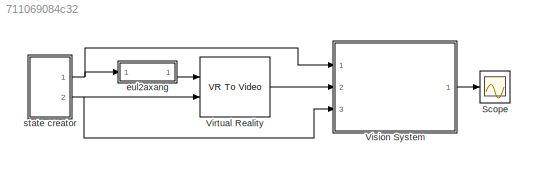
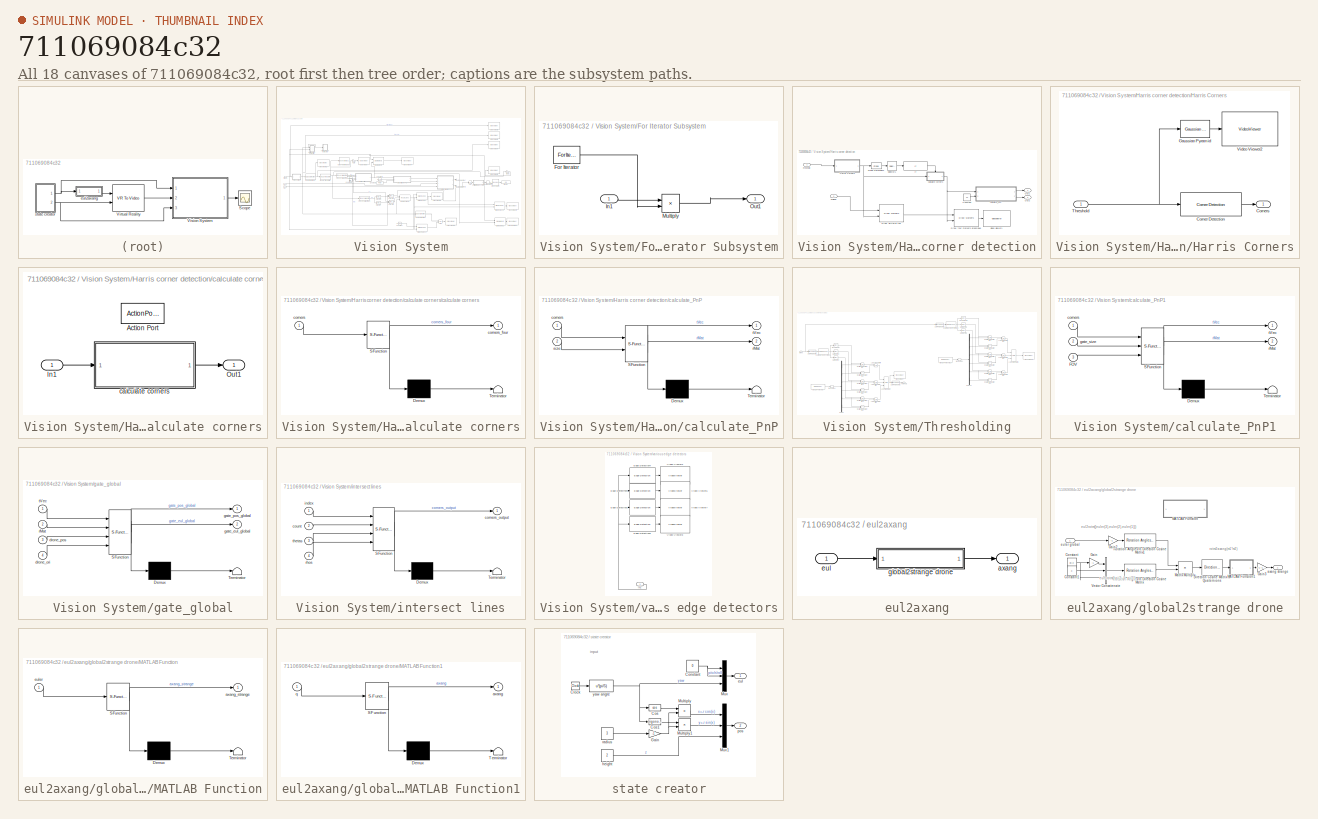
[diagram: thumbnail index - all 18 canvases of the model, root first then tree order]
MODEL slx_711069084c32
KIND model
CONFIG AbsTol = 10
CONFIG EnableMultiTasking = off
CONFIG FixedStep = .04
CONFIG MaxStep = 1.00
CONFIG MinStep = 0.005
CONFIG RelTol = 10
CONFIG SampleTimeConstraint = Unconstrained
CONFIG Solver = VariableStepAuto
CONFIG SolverName = VariableStepAuto
CONFIG StartTime = 0.0
CONFIG StopTime = 50
BLOCK [Scope] Scope
  Floating = off
  NumInputPorts = 1
  Ports = [1]
  ScopeSpecificationString = Simulink.scopes.TimeScopeBlockCfg('CurrentConfiguration', extmgr.ConfigurationSet(extmgr.Configuration('Core','General UI',true),extmgr.Configuration('Core','Source UI',true),extmgr.Configuration('Sources','WiredSimulink',true),extmgr.Configuration('Visuals','Time Domain',true,'SerializedDisplays',{struct('MinYLimReal','-2.05225','MaxYLimReal','2.4818','YLabelReal','','MinYLimMag','0.00000','MaxYL...<+1506ch>
BLOCK [Reference] Virtual Reality  REF=vrlib/VR To Video
  InstantiateOnLoad = on
  Ports = [2, 1]
  SourceBlock = vrlib/VR To Video
  SourceProductBaseCode = VR
  SourceProductName = Simulink 3D Animation
  SourceType = Virtual Reality Sink
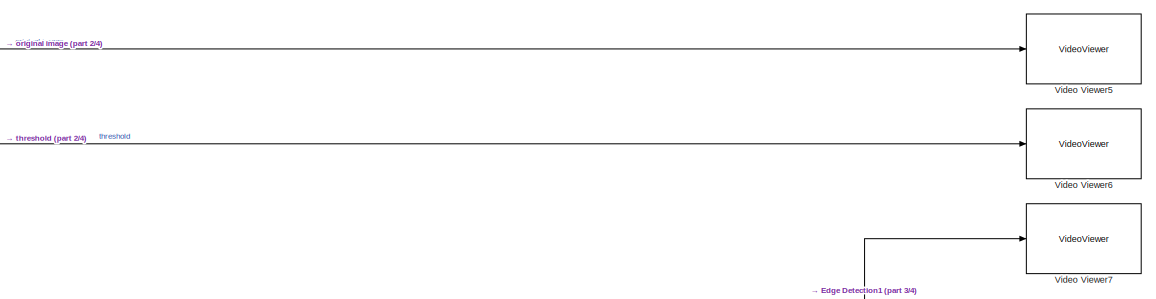
[diagram: Vision System - part 1/4, top right region]
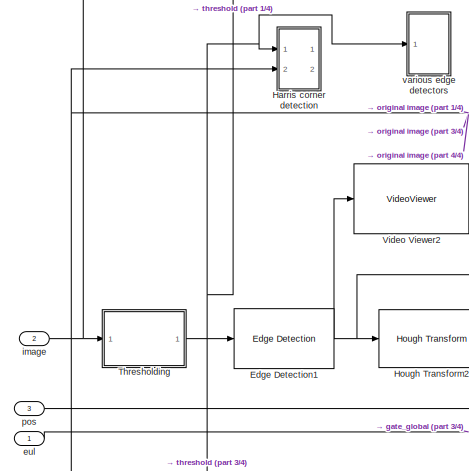
[diagram: Vision System - part 2/4, middle left region]
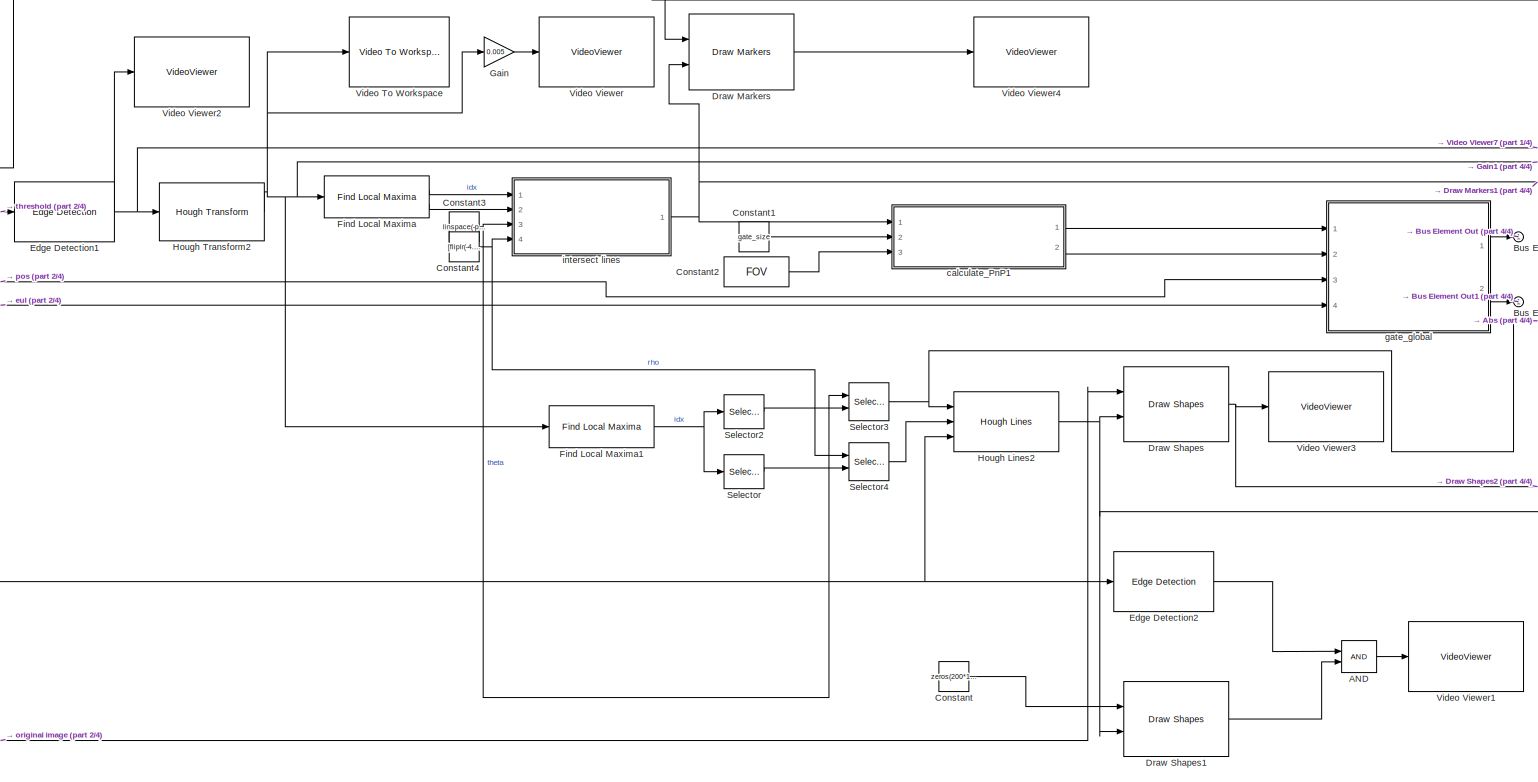
[diagram: Vision System - part 3/4, central region]
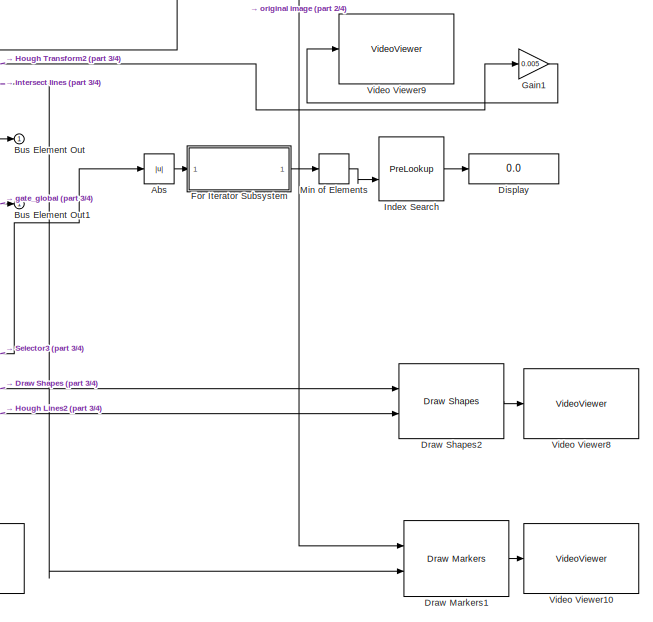
[diagram: Vision System - part 4/4, bottom right region]
BLOCK [SubSystem] Vision System
  Ports = [3, 1]
  RequestExecContextInheritance = off
BLOCK [Logic] Vision System/AND
  AllPortsSameDT = off
  IconShape = distinctive
  OutDataTypeStr = boolean
  Ports = [2, 1]
BLOCK [Abs] Vision System/Abs
  Commented = on
  SaturateOnIntegerOverflow = off
BLOCK [Outport] Vision System/Bus Element Out
  IconDisplay = Port number
BLOCK [Outport] Vision System/Bus Element Out1
  IconDisplay = Port number
BLOCK [Constant] Vision System/Constant
  Commented = on
  Value = zeros(200*1.5,320*1.5)
BLOCK [Constant] Vision System/Constant1
  Value = gate_size
BLOCK [Constant] Vision System/Constant2
  Value = FOV
BLOCK [Constant] Vision System/Constant3
  Value = linspace(-pi/2,pi/2-0.25*pi/180,720)
BLOCK [Constant] Vision System/Constant4
  Value = [fliplr(-4.5:-4.5:-sqrt(1280*1280+720*720)), 0:4.5:sqrt(1280*1280+720*720)]
BLOCK [Display] Vision System/Display
  Commented = on
  Decimation = 1
  Ports = [1]
BLOCK [Reference] Vision System/Draw Markers  REF=visiontextngfix/Draw Markers
  Commented = on
  Ports = [2, 1]
  SourceBlock = visiontextngfix/Draw Markers
  SourceProductBaseCode = VP
  SourceProductName = Computer Vision System Toolbox
  SourceType = Draw Markers
BLOCK [Reference] Vision System/Draw Markers1  REF=visiontextngfix/Draw Markers
  Commented = on
  Ports = [2, 1]
  SourceBlock = visiontextngfix/Draw Markers
  SourceProductBaseCode = VP
  SourceProductName = Computer Vision System Toolbox
  SourceType = Draw Markers
BLOCK [Reference] Vision System/Draw Shapes  REF=visiontextngfix/Draw Shapes
  Commented = on
  Ports = [2, 1]
  SourceBlock = visiontextngfix/Draw Shapes
  SourceProductBaseCode = VP
  SourceProductName = Computer Vision System Toolbox
  SourceType = Draw Shapes
BLOCK [Reference] Vision System/Draw Shapes1  REF=visiontextngfix/Draw Shapes
  Commented = on
  Ports = [2, 1]
  SourceBlock = visiontextngfix/Draw Shapes
  SourceProductBaseCode = VP
  SourceProductName = Computer Vision System Toolbox
  SourceType = Draw Shapes
BLOCK [Reference] Vision System/Draw Shapes2  REF=visiontextngfix/Draw Shapes
  Commented = on
  Ports = [2, 1]
  SourceBlock = visiontextngfix/Draw Shapes
  SourceProductBaseCode = VP
  SourceProductName = Computer Vision System Toolbox
  SourceType = Draw Shapes
BLOCK [Reference] Vision System/Edge Detection1  REF=visionanalysis/Edge Detection
  Ports = [1, 1]
  SourceBlock = visionanalysis/Edge Detection
  SourceProductBaseCode = VP
  SourceProductName = Computer Vision System Toolbox
  SourceType = Edge Detection
BLOCK [Reference] Vision System/Edge Detection2  REF=visionanalysis/Edge Detection
  Commented = on
  Ports = [1, 1]
  SourceBlock = visionanalysis/Edge Detection
  SourceProductBaseCode = VP
  SourceProductName = Computer Vision System Toolbox
  SourceType = Edge Detection
BLOCK [Reference] Vision System/Find Local Maxima  REF=visionstatistics/Find Local Maxima
  Ports = [1, 2]
  SourceBlock = visionstatistics/Find Local Maxima
  SourceProductBaseCode = VP
  SourceProductName = Computer Vision System Toolbox
  SourceType = Find Local Maxima
BLOCK [Reference] Vision System/Find Local Maxima1  REF=visionstatistics/Find Local Maxima
  Commented = on
  Ports = [1, 1]
  SourceBlock = visionstatistics/Find Local Maxima
  SourceProductBaseCode = VP
  SourceProductName = Computer Vision System Toolbox
  SourceType = Find Local Maxima
BLOCK [SubSystem] Vision System/For Iterator Subsystem
  Commented = on
  Ports = [1, 1]
  RequestExecContextInheritance = off
  TreatAsAtomicUnit = on
BLOCK [ForIterator] Vision System/For Iterator Subsystem/For Iterator
  Ports = [0, 1]
BLOCK [Inport] Vision System/For Iterator Subsystem/In1
  IconDisplay = Port number
BLOCK [Product] Vision System/For Iterator Subsystem/Multiply
  InputSameDT = off
  OutDataTypeStr = Inherit: Inherit via internal rule
  Ports = [2, 1]
  RndMeth = Floor
  SaturateOnIntegerOverflow = off
BLOCK [Outport] Vision System/For Iterator Subsystem/Out1
  IconDisplay = Port number
BLOCK [Gain] Vision System/Gain
  Commented = on
  Gain = 0.005
  OutDataTypeStr = Inherit: Inherit via internal rule
  ParamDataTypeStr = Inherit: Inherit via internal rule
  SaturateOnIntegerOverflow = off
BLOCK [Gain] Vision System/Gain1
  Commented = on
  Gain = 0.005
  OutDataTypeStr = Inherit: Inherit via internal rule
  ParamDataTypeStr = Inherit: Inherit via internal rule
  SaturateOnIntegerOverflow = off
BLOCK [SubSystem] Vision System/Harris corner detection
  Commented = on
  Ports = [2, 2]
  RequestExecContextInheritance = off
BLOCK [Constant] Vision System/Harris corner detection/Constant
  Commented = on
  Value = 1.4
BLOCK [Reference] Vision System/Harris corner detection/Draw all Harris red  REF=visiontextngfix/Draw Markers
  Commented = on
  Ports = [2, 1]
  SourceBlock = visiontextngfix/Draw Markers
  SourceProductBaseCode = VP
  SourceProductName = Computer Vision System Toolbox
  SourceType = Draw Markers
BLOCK [Reference] Vision System/Harris corner detection/Draw four markers green//blue  REF=visiontextngfix/Draw Markers
  Commented = on
  Ports = [2, 1]
  SourceBlock = visiontextngfix/Draw Markers
  SourceProductBaseCode = VP
  SourceProductName = Computer Vision System Toolbox
  SourceType = Draw Markers
BLOCK [SubSystem] Vision System/Harris corner detection/Harris Corners
  Commented = on
  Ports = [1, 1]
  RequestExecContextInheritance = off
BLOCK [Reference] Vision System/Harris corner detection/Harris Corners/Corner Detection  REF=visionanalysis/Corner Detection
  Ports = [1, 1]
  SourceBlock = visionanalysis/Corner Detection
  SourceProductBaseCode = VP
  SourceProductName = Computer Vision System Toolbox
  SourceType = Corner Detection
BLOCK [Outport] Vision System/Harris corner detection/Harris Corners/Corners
  IconDisplay = Port number
BLOCK [Reference] Vision System/Harris corner detection/Harris Corners/Gaussian Pyramid  REF=visiontransforms/Gaussian
Pyramid
  Commented = on
  Ports = [1, 1]
  SourceBlock = visiontransforms/Gaussian\nPyramid
  SourceProductBaseCode = VP
  SourceProductName = Computer Vision System Toolbox
  SourceType = Gaussian Pyramid
BLOCK [Inport] Vision System/Harris corner detection/Harris Corners/Threshold
  IconDisplay = Port number
BLOCK [VideoViewer] Vision System/Harris corner detection/Harris Corners/Video Viewer2
  Commented = on
  FigPos = [76 898 768 763]
  Ports = [1]
  ScopeSpecificationString = vipscopes.VideoViewerScopeCfg('CurrentConfiguration', extmgr.ConfigurationSet(extmgr.Configuration('Core','General UI',true,'ShowMainToolbar',false,'ShowStatusbar',false),extmgr.Configuration('Core','Source UI',true),extmgr.Configuration('Sources','WiredSimulink',true),extmgr.Configuration('Visuals','Video',true),extmgr.Configuration('Tools','Image Navigation Tools',true,'FitToView',true),extmgr.C...<+135ch>
  colormapValue = gray(256)
BLOCK [If] Vision System/Harris corner detection/If
  Commented = on
  IfExpression = u1 >= 4
  Ports = [1, 1]
  ShowElse = off
BLOCK [Outport] Vision System/Harris corner detection/Out1
  IconDisplay = Port number
BLOCK [Outport] Vision System/Harris corner detection/Out2
  IconDisplay = Port number
  Port = 2
BLOCK [Probe] Vision System/Harris corner detection/Probe Dimension1
  Commented = on
  Ports = [1, 1]
  ProbeComplexSignal = off
  ProbeSampleTime = off
  ProbeSignalDimensions = on
  ProbeWidth = off
BLOCK [Selector] Vision System/Harris corner detection/Selector1
  Commented = on
  IndexOptions = Index vector (dialog)
  Indices = 1
  OutputSizes = 1
  Ports = [1, 1]
BLOCK [VideoViewer] Vision System/Harris corner detection/Video Viewer1
  Commented = on
  FigPos = [823 898 758 735]
  Ports = [1]
  ScopeSpecificationString = vipscopes.VideoViewerScopeCfg('CurrentConfiguration', extmgr.ConfigurationSet(extmgr.Configuration('Core','General UI',true,'ShowMainToolbar',false,'ShowStatusbar',false),extmgr.Configuration('Core','Source UI',true),extmgr.Configuration('Sources','WiredSimulink',true,'LockSynchronous',true),extmgr.Configuration('Visuals','Video',true),extmgr.Configuration('Tools','Image Navigation Tools',true,'Fi...<+185ch>
  colormapValue = gray(256)
BLOCK [SubSystem] Vision System/Harris corner detection/calculate corners
  Commented = on
  Ports = [1, 1, 0, 0, 0, 0, 0, 1]
  RequestExecContextInheritance = off
  TreatAsAtomicUnit = on
BLOCK [ActionPort] Vision System/Harris corner detection/calculate corners/Action Port
  ActionType = then
  PropagateVarSize = During execution
BLOCK [Inport] Vision System/Harris corner detection/calculate corners/In1
  IconDisplay = Port number
BLOCK [Outport] Vision System/Harris corner detection/calculate corners/Out1
  IconDisplay = Port number
BLOCK [SubSystem] Vision System/Harris corner detection/calculate corners/calculate corners
  ErrorFcn = Stateflow.Translate.translate
  PermitHierarchicalResolution = ExplicitOnly
  Ports = [1, 1]
  RequestExecContextInheritance = off
  SFBlockType = MATLAB Function
  TreatAsAtomicUnit = on
BLOCK [Demux] Vision System/Harris corner detection/calculate corners/calculate corners/ Demux 
  Outputs = 1
  Ports = [1, 1]
BLOCK [S-Function] Vision System/Harris corner detection/calculate corners/calculate corners/ SFunction 
  EnableBusSupport = on
  FunctionName = sf_sfun
  PortCounts = [1 2]
  Ports = [1, 2]
  SFcnIsStateOwnerBlock = off
  SFunctionDeploymentMode = off
  Tag = Stateflow S-Function KF_vision 1
BLOCK [Terminator] Vision System/Harris corner detection/calculate corners/calculate corners/ Terminator 
BLOCK [Inport] Vision System/Harris corner detection/calculate corners/calculate corners/corners
  IconDisplay = Port number
BLOCK [Outport] Vision System/Harris corner detection/calculate corners/calculate corners/corners_four
  IconDisplay = Port number
BLOCK [SubSystem] Vision System/Harris corner detection/calculate_PnP
  Commented = on
  ErrorFcn = Stateflow.Translate.translate
  PermitHierarchicalResolution = ExplicitOnly
  Ports = [2, 2]
  RequestExecContextInheritance = off
  SFBlockType = MATLAB Function
  TreatAsAtomicUnit = on
BLOCK [Demux] Vision System/Harris corner detection/calculate_PnP/ Demux 
  Outputs = 1
  Ports = [1, 1]
BLOCK [S-Function] Vision System/Harris corner detection/calculate_PnP/ SFunction 
  EnableBusSupport = on
  FunctionName = sf_sfun
  PortCounts = [2 3]
  Ports = [2, 3]
  SFcnIsStateOwnerBlock = off
  SFunctionDeploymentMode = off
  Tag = Stateflow S-Function KF_vision 5
BLOCK [Terminator] Vision System/Harris corner detection/calculate_PnP/ Terminator 
BLOCK [Inport] Vision System/Harris corner detection/calculate_PnP/corners
  IconDisplay = Port number
BLOCK [Outport] Vision System/Harris corner detection/calculate_PnP/rMat
  IconDisplay = Port number
  Port = 2
BLOCK [Inport] Vision System/Harris corner detection/calculate_PnP/size
  IconDisplay = Port number
  Port = 2
BLOCK [Outport] Vision System/Harris corner detection/calculate_PnP/tVec
  IconDisplay = Port number
BLOCK [Inport] Vision System/Harris corner detection/hreshold
  IconDisplay = Port number
BLOCK [Inport] Vision System/Harris corner detection/original
  IconDisplay = Port number
  Port = 2
BLOCK [Reference] Vision System/Hough Lines2  REF=visiontransforms/Hough Lines
  Commented = on
  Ports = [3, 1]
  SourceBlock = visiontransforms/Hough Lines
  SourceProductBaseCode = VP
  SourceProductName = Computer Vision System Toolbox
  SourceType = Hough Lines
BLOCK [Reference] Vision System/Hough Transform2  REF=visiontransforms/Hough Transform
  Ports = [1, 1]
  SourceBlock = visiontransforms/Hough Transform
  SourceProductBaseCode = VP
  SourceProductName = Computer Vision System Toolbox
  SourceType = Hough Transform
BLOCK [PreLookup] Vision System/Index Search
  BreakpointsData = [10:10:110]
  BreakpointsDataSource = Input port
  Commented = on
  InputPortMap = u0,p1
  OutputSelection = Index only
  Ports = [2, 1]
BLOCK [MinMax] Vision System/Min of Elements
  Commented = on
  InputSameDT = off
  Ports = [1, 1]
  SaturateOnIntegerOverflow = off
BLOCK [Selector] Vision System/Selector
  Commented = on
  IndexMode = Zero-based
  IndexOptions = Select all,Index vector (dialog)
  Indices = 2,1
  InputPortWidth = 2
  NumberOfDimensions = 2
  OutputSizes = 1,1
  Ports = [1, 1]
BLOCK [Selector] Vision System/Selector2
  Commented = on
  IndexMode = Zero-based
  IndexOptions = Select all,Index vector (dialog)
  Indices = 1,0
  InputPortWidth = 2
  NumberOfDimensions = 2
  OutputSizes = 1,1
  Ports = [1, 1]
BLOCK [Selector] Vision System/Selector3
  Commented = on
  IndexOptions = Select all,Index vector (port)
  Indices = [1 3],1
  InputPortWidth = 3
  NumberOfDimensions = 2
  OutputSizes = 1,1
  Ports = [2, 1]
BLOCK [Selector] Vision System/Selector4
  Commented = on
  IndexOptions = Select all,Index vector (port)
  Indices = [1 3],1
  InputPortWidth = 3
  NumberOfDimensions = 2
  OutputSizes = 1,1
  Ports = [2, 1]
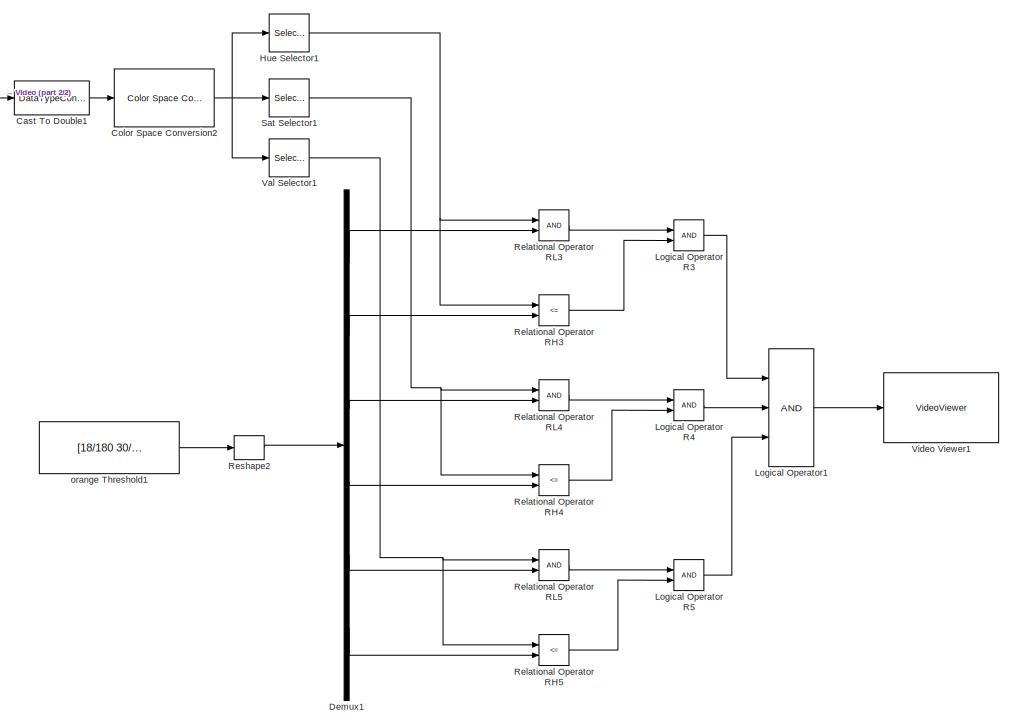
[diagram: Vision System/Thresholding - part 1/2, middle right region]
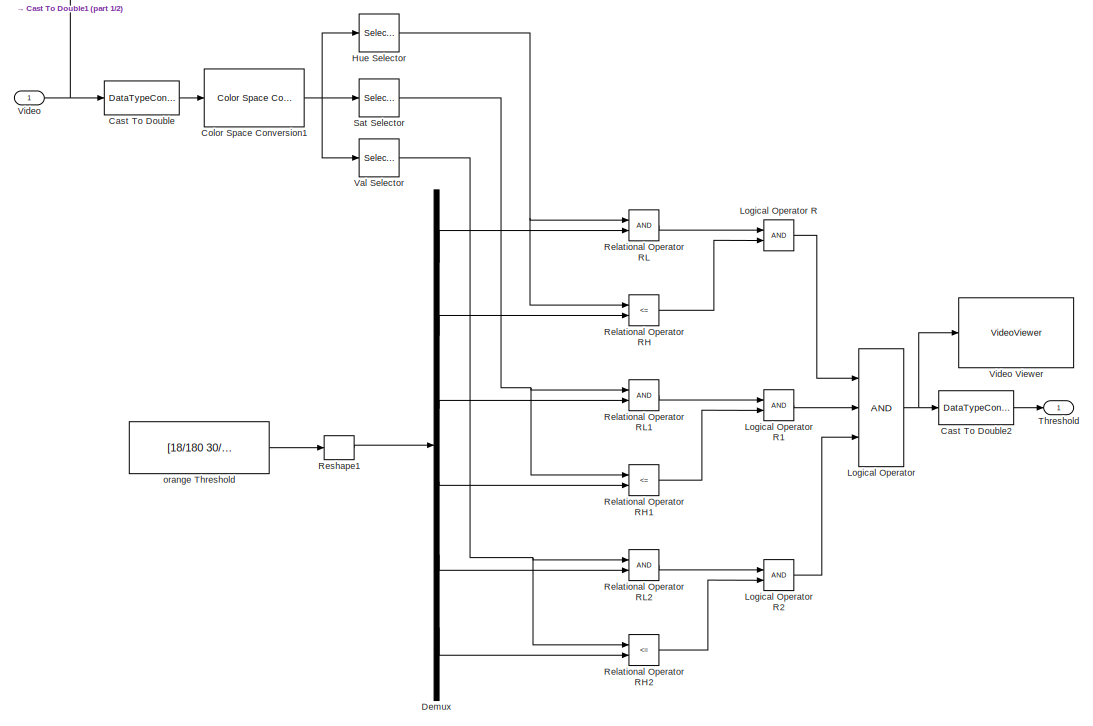
[diagram: Vision System/Thresholding - part 2/2, middle left region]
BLOCK [SubSystem] Vision System/Thresholding
  Ports = [1, 1]
  RequestExecContextInheritance = off
BLOCK [DataTypeConversion] Vision System/Thresholding/Cast To Double
  OutDataTypeStr = double
  RndMeth = Floor
  SaturateOnIntegerOverflow = off
BLOCK [DataTypeConversion] Vision System/Thresholding/Cast To Double1
  Commented = on
  OutDataTypeStr = double
  RndMeth = Floor
  SaturateOnIntegerOverflow = off
BLOCK [DataTypeConversion] Vision System/Thresholding/Cast To Double2
  OutDataTypeStr = double
  RndMeth = Floor
  SaturateOnIntegerOverflow = off
BLOCK [Reference] Vision System/Thresholding/Color Space Conversion1  REF=visionconversions/Color Space
 Conversion
  Ports = [1, 1]
  SourceBlock = visionconversions/Color Space\n Conversion
  SourceProductBaseCode = VP
  SourceProductName = Computer Vision System Toolbox
  SourceType = Color Space Conversion
BLOCK [Reference] Vision System/Thresholding/Color Space Conversion2  REF=visionconversions/Color Space
 Conversion
  Commented = on
  Ports = [1, 1]
  SourceBlock = visionconversions/Color Space\n Conversion
  SourceProductBaseCode = VP
  SourceProductName = Computer Vision System Toolbox
  SourceType = Color Space Conversion
BLOCK [Demux] Vision System/Thresholding/Demux
  DisplayOption = bar
  Outputs = 6
  Ports = [1, 6]
BLOCK [Demux] Vision System/Thresholding/Demux1
  Commented = on
  DisplayOption = bar
  Outputs = 6
  Ports = [1, 6]
BLOCK [Selector] Vision System/Thresholding/Hue Selector
  IndexMode = Zero-based
  IndexOptions = Select all,Select all,Index vector (dialog)
  Indices = [1 3],1,0
  InputPortWidth = 3
  NumberOfDimensions = 3
  OutputSizes = 1,1,1
  Ports = [1, 1]
BLOCK [Selector] Vision System/Thresholding/Hue Selector1
  Commented = on
  IndexOptions = Select all,Select all,Index vector (dialog)
  Indices = [1 3],1,1
  InputPortWidth = 3
  NumberOfDimensions = 3
  OutputSizes = 1,1,1
  Ports = [1, 1]
BLOCK [Logic] Vision System/Thresholding/Logical Operator
  AllPortsSameDT = off
  Inputs = 3
  OutDataTypeStr = boolean
  Ports = [3, 1]
BLOCK [Logic] Vision System/Thresholding/Logical Operator R
  AllPortsSameDT = off
  OutDataTypeStr = boolean
  Ports = [2, 1]
BLOCK [Logic] Vision System/Thresholding/Logical Operator R1
  AllPortsSameDT = off
  OutDataTypeStr = boolean
  Ports = [2, 1]
BLOCK [Logic] Vision System/Thresholding/Logical Operator R2
  AllPortsSameDT = off
  OutDataTypeStr = boolean
  Ports = [2, 1]
BLOCK [Logic] Vision System/Thresholding/Logical Operator R3
  AllPortsSameDT = off
  Commented = on
  OutDataTypeStr = boolean
  Ports = [2, 1]
BLOCK [Logic] Vision System/Thresholding/Logical Operator R4
  AllPortsSameDT = off
  Commented = on
  OutDataTypeStr = boolean
  Ports = [2, 1]
BLOCK [Logic] Vision System/Thresholding/Logical Operator R5
  AllPortsSameDT = off
  Commented = on
  OutDataTypeStr = boolean
  Ports = [2, 1]
BLOCK [Logic] Vision System/Thresholding/Logical Operator1
  AllPortsSameDT = off
  Commented = on
  Inputs = 3
  OutDataTypeStr = boolean
  Ports = [3, 1]
BLOCK [RelationalOperator] Vision System/Thresholding/Relational Operator RH
  InputSameDT = off
  Operator = <=
  OutDataTypeStr = boolean
  Ports = [2, 1]
BLOCK [RelationalOperator] Vision System/Thresholding/Relational Operator RH1
  InputSameDT = off
  Operator = <=
  OutDataTypeStr = boolean
  Ports = [2, 1]
BLOCK [RelationalOperator] Vision System/Thresholding/Relational Operator RH2
  InputSameDT = off
  Operator = <=
  OutDataTypeStr = boolean
  Ports = [2, 1]
BLOCK [RelationalOperator] Vision System/Thresholding/Relational Operator RH3
  Commented = on
  InputSameDT = off
  Operator = <=
  OutDataTypeStr = boolean
  Ports = [2, 1]
BLOCK [RelationalOperator] Vision System/Thresholding/Relational Operator RH4
  Commented = on
  InputSameDT = off
  Operator = <=
  OutDataTypeStr = boolean
  Ports = [2, 1]
BLOCK [RelationalOperator] Vision System/Thresholding/Relational Operator RH5
  Commented = on
  InputSameDT = off
  Operator = <=
  OutDataTypeStr = boolean
  Ports = [2, 1]
BLOCK [RelationalOperator] Vision System/Thresholding/Relational Operator RL
  InputSameDT = off
  OutDataTypeStr = boolean
  Ports = [2, 1]
BLOCK [RelationalOperator] Vision System/Thresholding/Relational Operator RL1
  InputSameDT = off
  OutDataTypeStr = boolean
  Ports = [2, 1]
BLOCK [RelationalOperator] Vision System/Thresholding/Relational Operator RL2
  InputSameDT = off
  OutDataTypeStr = boolean
  Ports = [2, 1]
BLOCK [RelationalOperator] Vision System/Thresholding/Relational Operator RL3
  Commented = on
  InputSameDT = off
  OutDataTypeStr = boolean
  Ports = [2, 1]
BLOCK [RelationalOperator] Vision System/Thresholding/Relational Operator RL4
  Commented = on
  InputSameDT = off
  OutDataTypeStr = boolean
  Ports = [2, 1]
BLOCK [RelationalOperator] Vision System/Thresholding/Relational Operator RL5
  Commented = on
  InputSameDT = off
  OutDataTypeStr = boolean
  Ports = [2, 1]
BLOCK [Reshape] Vision System/Thresholding/Reshape1
  Ports = [1, 1]
BLOCK [Reshape] Vision System/Thresholding/Reshape2
  Commented = on
  Ports = [1, 1]
BLOCK [Selector] Vision System/Thresholding/Sat Selector
  IndexMode = Zero-based
  IndexOptions = Select all,Select all,Index vector (dialog)
  Indices = [1 3],1,1
  InputPortWidth = 3
  NumberOfDimensions = 3
  OutputSizes = 1,1,1
  Ports = [1, 1]
BLOCK [Selector] Vision System/Thresholding/Sat Selector1
  Commented = on
  IndexOptions = Select all,Select all,Index vector (dialog)
  Indices = [1 3],1,2
  InputPortWidth = 3
  NumberOfDimensions = 3
  OutputSizes = 1,1,1
  Ports = [1, 1]
BLOCK [Outport] Vision System/Thresholding/Threshold
  IconDisplay = Port number
BLOCK [Selector] Vision System/Thresholding/Val Selector
  IndexMode = Zero-based
  IndexOptions = Select all,Select all,Index vector (dialog)
  Indices = [1 3],1,2
  InputPortWidth = 3
  NumberOfDimensions = 3
  OutputSizes = 1,1,1
  Ports = [1, 1]
BLOCK [Selector] Vision System/Thresholding/Val Selector1
  Commented = on
  IndexOptions = Select all,Select all,Index vector (dialog)
  Indices = [1 3],1,3
  InputPortWidth = 3
  NumberOfDimensions = 3
  OutputSizes = 1,1,1
  Ports = [1, 1]
BLOCK [Inport] Vision System/Thresholding/Video 
  IconDisplay = Port number
BLOCK [VideoViewer] Vision System/Thresholding/Video Viewer
  Commented = on
  FigPos = [833 898 768 793]
  Ports = [1]
  ScopeSpecificationString = vipscopes.VideoViewerScopeCfg('CurrentConfiguration', extmgr.ConfigurationSet(extmgr.Configuration('Core','General UI',true,'ShowMainToolbar',false,'ShowStatusbar',false),extmgr.Configuration('Core','Source UI',true),extmgr.Configuration('Sources','WiredSimulink',true),extmgr.Configuration('Visuals','Video',true),extmgr.Configuration('Tools','Image Navigation Tools',true,'FitToView',true),extmgr.C...<+136ch>
  colormapValue = gray(256)
BLOCK [VideoViewer] Vision System/Thresholding/Video Viewer1
  Commented = on
  FigPos = [823 898 778 793]
  Ports = [1]
  ScopeSpecificationString = vipscopes.VideoViewerScopeCfg('CurrentConfiguration', extmgr.ConfigurationSet(extmgr.Configuration('Core','General UI',true,'ShowMainToolbar',false,'ShowStatusbar',false),extmgr.Configuration('Core','Source UI',true),extmgr.Configuration('Sources','WiredSimulink',true),extmgr.Configuration('Visuals','Video',true),extmgr.Configuration('Tools','Image Navigation Tools',true,'FitToView',true),extmgr.C...<+136ch>
  colormapValue = gray(256)
BLOCK [Constant] Vision System/Thresholding/orange Threshold
  OutDataTypeStr = double
  Value = [18/180 30/180; 190/255 255/255; 75 255]'
BLOCK [Constant] Vision System/Thresholding/orange Threshold1
  Commented = on
  OutDataTypeStr = double
  Value = [18/180 30/180; 190/255 255/255; 75 255]'
BLOCK [Reference] Vision System/Video To Workspace  REF=visionsinks/Video To Workspace
  Commented = on
  Ports = [1]
  SourceBlock = visionsinks/Video To Workspace
  SourceProductBaseCode = VP
  SourceProductName = Computer Vision System Toolbox
  SourceType = Video To Workspace
BLOCK [VideoViewer] Vision System/Video Viewer
  Commented = on
  FigPos = [66 898 768 765]
  Ports = [1]
  ScopeSpecificationString = vipscopes.VideoViewerScopeCfg('CurrentConfiguration', extmgr.ConfigurationSet(extmgr.Configuration('Core','General UI',true),extmgr.Configuration('Core','Source UI',true),extmgr.Configuration('Sources','WiredSimulink',true),extmgr.Configuration('Visuals','Video',true),extmgr.Configuration('Tools','Image Navigation Tools',true,'FitToView',true),extmgr.Configuration('Tools','Image Tool',true),extmgr...<+115ch>
  colormapValue = gray(256)
BLOCK [VideoViewer] Vision System/Video Viewer1
  Commented = on
  FigPos = [983 1078 938 945]
  Ports = [1]
  ScopeSpecificationString = vipscopes.VideoViewerScopeCfg('CurrentConfiguration', extmgr.ConfigurationSet(extmgr.Configuration('Core','General UI',true,'ShowSaveConfigSet',true,'FigureProperties',struct('ColorMap',[0 0 0;0.00392156862745098 0.00392156862745098 0.00392156862745098;0.00784313725490196 0.00784313725490196 0.00784313725490196;0.0117647058823529 0.0117647058823529 0.0117647058823529;0.0156862745098039 0.015686274...<+15066ch>
  colormapValue = gray(256)
BLOCK [VideoViewer] Vision System/Video Viewer10
  Commented = on
  FigPos = [66 1078 1855 973]
  Ports = [1]
  ScopeSpecificationString = vipscopes.VideoViewerScopeCfg('CurrentConfiguration', extmgr.ConfigurationSet(extmgr.Configuration('Core','General UI',true,'ShowSaveConfigSet',true,'FigureProperties',struct('ColorMap',[0 0 0;0.00392156862745098 0.00392156862745098 0.00392156862745098;0.00784313725490196 0.00784313725490196 0.00784313725490196;0.0117647058823529 0.0117647058823529 0.0117647058823529;0.0156862745098039 0.015686274...<+15016ch>
  colormapValue = gray(256)
BLOCK [VideoViewer] Vision System/Video Viewer2
  Commented = on
  FigPos = [993 1078 928 945]
  Ports = [1]
  ScopeSpecificationString = vipscopes.VideoViewerScopeCfg('CurrentConfiguration', extmgr.ConfigurationSet(extmgr.Configuration('Core','General UI',true),extmgr.Configuration('Core','Source UI',true),extmgr.Configuration('Sources','WiredSimulink',true),extmgr.Configuration('Visuals','Video',true),extmgr.Configuration('Tools','Image Navigation Tools',true,'Magnification',1.6,'FitToView',true),extmgr.Configuration('Tools','Imag...<+136ch>
  colormapValue = gray(256)
BLOCK [VideoViewer] Vision System/Video Viewer3
  Commented = on
  FigPos = [993 1078 928 945]
  Ports = [1]
  ScopeSpecificationString = vipscopes.VideoViewerScopeCfg('CurrentConfiguration', extmgr.ConfigurationSet(extmgr.Configuration('Core','General UI',true,'ShowSaveConfigSet',true,'FigureProperties',struct('ColorMap',[0 0 0;0.00392156862745098 0.00392156862745098 0.00392156862745098;0.00784313725490196 0.00784313725490196 0.00784313725490196;0.0117647058823529 0.0117647058823529 0.0117647058823529;0.0156862745098039 0.015686274...<+15092ch>
  colormapValue = gray(256)
BLOCK [VideoViewer] Vision System/Video Viewer4
  Commented = on
  FigPos = [983 1078 938 945]
  Ports = [1]
  ScopeSpecificationString = vipscopes.VideoViewerScopeCfg('CurrentConfiguration', extmgr.ConfigurationSet(extmgr.Configuration('Core','General UI',true,'ShowSaveConfigSet',true,'FigureProperties',struct('ColorMap',[0 0 0;0.00392156862745098 0.00392156862745098 0.00392156862745098;0.00784313725490196 0.00784313725490196 0.00784313725490196;0.0117647058823529 0.0117647058823529 0.0117647058823529;0.0156862745098039 0.015686274...<+15092ch>
  colormapValue = gray(256)
BLOCK [VideoViewer] Vision System/Video Viewer5
  FigPos = [66 1078 1855 945]
  Ports = [1]
  ScopeSpecificationString = vipscopes.VideoViewerScopeCfg('CurrentConfiguration', extmgr.ConfigurationSet(extmgr.Configuration('Core','General UI',true),extmgr.Configuration('Core','Source UI',true),extmgr.Configuration('Sources','WiredSimulink',true),extmgr.Configuration('Visuals','Video',true),extmgr.Configuration('Tools','Image Navigation Tools',true,'FitToView',true),extmgr.Configuration('Tools','Image Tool',true),extmgr...<+90ch>
  colormapValue = gray(256)
BLOCK [VideoViewer] Vision System/Video Viewer6
  Commented = on
  FigPos = [66 1078 1855 973]
  Ports = [1]
  ScopeSpecificationString = vipscopes.VideoViewerScopeCfg('CurrentConfiguration', extmgr.ConfigurationSet(extmgr.Configuration('Core','General UI',true),extmgr.Configuration('Core','Source UI',true),extmgr.Configuration('Sources','WiredSimulink',true),extmgr.Configuration('Visuals','Video',true),extmgr.Configuration('Tools','Image Navigation Tools',true),extmgr.Configuration('Tools','Image Tool',true),extmgr.Configuration('T...<+73ch>  <repeated x3 — deduplicated; at blocks: Video Viewer6, Video Viewer7, Video Viewer8>
  colormapValue = gray(256)
BLOCK [VideoViewer] Vision System/Video Viewer7
  Commented = on
  FigPos = [66 1078 1855 973]
  Ports = [1]
  colormapValue = gray(256)
BLOCK [VideoViewer] Vision System/Video Viewer8
  Commented = on
  FigPos = [66 1078 1855 973]
  Ports = [1]
  colormapValue = gray(256)
BLOCK [VideoViewer] Vision System/Video Viewer9
  Commented = on
  FigPos = [66 1078 1855 973]
  Ports = [1]
  ScopeSpecificationString = vipscopes.VideoViewerScopeCfg('CurrentConfiguration', extmgr.ConfigurationSet(extmgr.Configuration('Core','General UI',true),extmgr.Configuration('Core','Source UI',true),extmgr.Configuration('Sources','WiredSimulink',true),extmgr.Configuration('Visuals','Video',true),extmgr.Configuration('Tools','Image Navigation Tools',true,'FitToView',true),extmgr.Configuration('Tools','Image Tool',true),extmgr...<+90ch>
  colormapValue = gray(256)
BLOCK [SubSystem] Vision System/calculate_PnP1
  ErrorFcn = Stateflow.Translate.translate
  PermitHierarchicalResolution = ExplicitOnly
  Ports = [3, 2]
  RequestExecContextInheritance = off
  SFBlockType = MATLAB Function
  TreatAsAtomicUnit = on
BLOCK [Demux] Vision System/calculate_PnP1/ Demux 
  Outputs = 1
  Ports = [1, 1]
BLOCK [S-Function] Vision System/calculate_PnP1/ SFunction 
  EnableBusSupport = on
  FunctionName = sf_sfun
  PortCounts = [3 3]
  Ports = [3, 3]
  SFcnIsStateOwnerBlock = off
  SFunctionDeploymentMode = off
  Tag = Stateflow S-Function KF_vision 13
BLOCK [Terminator] Vision System/calculate_PnP1/ Terminator 
BLOCK [Inport] Vision System/calculate_PnP1/FOV
  IconDisplay = Port number
  Port = 3
BLOCK [Inport] Vision System/calculate_PnP1/corners
  IconDisplay = Port number
BLOCK [Inport] Vision System/calculate_PnP1/gate_size
  IconDisplay = Port number
  Port = 2
BLOCK [Outport] Vision System/calculate_PnP1/rMat
  IconDisplay = Port number
  Port = 2
BLOCK [Outport] Vision System/calculate_PnP1/tVec
  IconDisplay = Port number
BLOCK [Inport] Vision System/eul
  IconDisplay = Port number
BLOCK [SubSystem] Vision System/gate_global
  ErrorFcn = Stateflow.Translate.translate
  PermitHierarchicalResolution = ExplicitOnly
  Ports = [4, 2]
  RequestExecContextInheritance = off
  SFBlockType = MATLAB Function
  TreatAsAtomicUnit = on
BLOCK [Demux] Vision System/gate_global/ Demux 
  Outputs = 1
  Ports = [1, 1]
BLOCK [S-Function] Vision System/gate_global/ SFunction 
  EnableBusSupport = on
  FunctionName = sf_sfun
  PortCounts = [4 3]
  Ports = [4, 3]
  SFcnIsStateOwnerBlock = off
  SFunctionDeploymentMode = off
  Tag = Stateflow S-Function KF_vision 18
BLOCK [Terminator] Vision System/gate_global/ Terminator 
BLOCK [Inport] Vision System/gate_global/drone_ori
  IconDisplay = Port number
  Port = 4
BLOCK [Inport] Vision System/gate_global/drone_pos
  IconDisplay = Port number
  Port = 3
BLOCK [Outport] Vision System/gate_global/gate_eul_global
  IconDisplay = Port number
  Port = 2
BLOCK [Outport] Vision System/gate_global/gate_pos_global
  IconDisplay = Port number
BLOCK [Inport] Vision System/gate_global/rMat
  IconDisplay = Port number
  Port = 2
BLOCK [Inport] Vision System/gate_global/tVec
  IconDisplay = Port number
BLOCK [Inport] Vision System/image
  IconDisplay = Port number
  Port = 2
BLOCK [SubSystem] Vision System/intersect lines
  ErrorFcn = Stateflow.Translate.translate
  PermitHierarchicalResolution = ExplicitOnly
  Ports = [4, 1]
  RequestExecContextInheritance = off
  SFBlockType = MATLAB Function
  TreatAsAtomicUnit = on
BLOCK [Demux] Vision System/intersect lines/ Demux 
  Outputs = 1
  Ports = [1, 1]
BLOCK [S-Function] Vision System/intersect lines/ SFunction 
  EnableBusSupport = on
  FunctionName = sf_sfun
  PortCounts = [4 2]
  Ports = [4, 2]
  SFcnIsStateOwnerBlock = off
  SFunctionDeploymentMode = off
  Tag = Stateflow S-Function KF_vision 12
BLOCK [Terminator] Vision System/intersect lines/ Terminator 
BLOCK [Outport] Vision System/intersect lines/corners_output
  IconDisplay = Port number
BLOCK [Inport] Vision System/intersect lines/count
  IconDisplay = Port number
  Port = 2
BLOCK [Inport] Vision System/intersect lines/index
  IconDisplay = Port number
BLOCK [Inport] Vision System/intersect lines/rhos
  IconDisplay = Port number
  Port = 4
BLOCK [Inport] Vision System/intersect lines/thetas
  IconDisplay = Port number
  Port = 3
BLOCK [Inport] Vision System/pos
  IconDisplay = Port number
  Port = 3
BLOCK [SubSystem] Vision System/various edge detectors
  Commented = on
  Ports = [1]
  RequestExecContextInheritance = off
BLOCK [Reference] Vision System/various edge detectors/Edge Detection2  REF=visionanalysis/Edge Detection
  Commented = on
  Ports = [1, 1]
  SourceBlock = visionanalysis/Edge Detection
  SourceProductBaseCode = VP
  SourceProductName = Computer Vision System Toolbox
  SourceType = Edge Detection
BLOCK [Reference] Vision System/various edge detectors/Edge Detection3  REF=visionanalysis/Edge Detection
  Commented = on
  Ports = [1, 1]
  SourceBlock = visionanalysis/Edge Detection
  SourceProductBaseCode = VP
  SourceProductName = Computer Vision System Toolbox
  SourceType = Edge Detection
BLOCK [Reference] Vision System/various edge detectors/Edge Detection4  REF=visionanalysis/Edge Detection
  Commented = on
  Ports = [1, 1]
  SourceBlock = visionanalysis/Edge Detection
  SourceProductBaseCode = VP
  SourceProductName = Computer Vision System Toolbox
  SourceType = Edge Detection
BLOCK [Reference] Vision System/various edge detectors/Edge Detection5  REF=visionanalysis/Edge Detection
  Commented = on
  Ports = [1, 1]
  SourceBlock = visionanalysis/Edge Detection
  SourceProductBaseCode = VP
  SourceProductName = Computer Vision System Toolbox
  SourceType = Edge Detection
BLOCK [Inport] Vision System/various edge detectors/In1
  IconDisplay = Port number
BLOCK [VideoViewer] Vision System/various edge detectors/Video Viewer5
  Commented = on
  FigPos = [66 590 883 485]
  Ports = [1]
  ScopeSpecificationString = vipscopes.VideoViewerScopeCfg('CurrentConfiguration', extmgr.ConfigurationSet(extmgr.Configuration('Core','General UI',true,'ShowMainToolbar',false,'ShowStatusbar',false),extmgr.Configuration('Core','Source UI',true),extmgr.Configuration('Sources','WiredSimulink',true),extmgr.Configuration('Visuals','Video',true),extmgr.Configuration('Tools','Image Navigation Tools',true,'Magnification',1.6,'FitTo...<+157ch>
  colormapValue = gray(256)
BLOCK [VideoViewer] Vision System/various edge detectors/Video Viewer6
  Commented = on
  FigPos = [944 599 964 491]
  Ports = [1]
  ScopeSpecificationString = vipscopes.VideoViewerScopeCfg('CurrentConfiguration', extmgr.ConfigurationSet(extmgr.Configuration('Core','General UI',true,'ShowMainToolbar',false,'ShowStatusbar',false),extmgr.Configuration('Core','Source UI',true),extmgr.Configuration('Sources','WiredSimulink',true),extmgr.Configuration('Visuals','Video',true),extmgr.Configuration('Tools','Image Navigation Tools',true,'Magnification',1.6,'FitTo...<+158ch>
  colormapValue = gray(256)
BLOCK [VideoViewer] Vision System/various edge detectors/Video Viewer7
  Commented = on
  FigPos = [76 1078 884 495]
  Ports = [1]
  ScopeSpecificationString = vipscopes.VideoViewerScopeCfg('CurrentConfiguration', extmgr.ConfigurationSet(extmgr.Configuration('Core','General UI',true,'ShowMainToolbar',false,'ShowStatusbar',false),extmgr.Configuration('Core','Source UI',true),extmgr.Configuration('Sources','WiredSimulink',true),extmgr.Configuration('Visuals','Video',true),extmgr.Configuration('Tools','Image Navigation Tools',true,'Magnification',1.6,'FitTo...<+155ch>
  colormapValue = gray(256)
BLOCK [VideoViewer] Vision System/various edge detectors/Video Viewer8
  Commented = on
  FigPos = [956 1078 951 493]
  Ports = [1]
  ScopeSpecificationString = vipscopes.VideoViewerScopeCfg('CurrentConfiguration', extmgr.ConfigurationSet(extmgr.Configuration('Core','General UI',true,'ShowMainToolbar',false,'ShowStatusbar',false),extmgr.Configuration('Core','Source UI',true),extmgr.Configuration('Sources','WiredSimulink',true),extmgr.Configuration('Visuals','Video',true),extmgr.Configuration('Tools','Image Navigation Tools',true,'Magnification',1.6,'FitTo...<+156ch>
  colormapValue = gray(256)
BLOCK [SubSystem] eul2axang
  Ports = [1, 1]
  RequestExecContextInheritance = off
BLOCK [Outport] eul2axang/axang
  IconDisplay = Port number
BLOCK [Inport] eul2axang/eul
  IconDisplay = Port number
BLOCK [SubSystem] eul2axang/global2strange drone
  Ports = [1, 1]
  RequestExecContextInheritance = off
BLOCK [Constant] eul2axang/global2strange drone/Constant
  Value = pi/2
BLOCK [Constant] eul2axang/global2strange drone/Constant1
  Value = 0
BLOCK [Reference] eul2axang/global2strange drone/Direction Cosine Matrix to Quaternions  REF=sharedtransform/Direction Cosine Matrix 
to Quaternions
  Ports = [1, 1]
  SourceBlock = sharedtransform/Direction Cosine Matrix \nto Quaternions
  SourceProductBaseCode = AE
  SourceProductName = Aerospace Blockset
  SourceType = DCM2Quaternion
BLOCK [Gain] eul2axang/global2strange drone/Gain
  Gain = -1
  OutDataTypeStr = Inherit: Inherit via internal rule
  ParamDataTypeStr = Inherit: Inherit via internal rule
  SaturateOnIntegerOverflow = off
BLOCK [Gain] eul2axang/global2strange drone/Gain2
  Gain = -1
  OutDataTypeStr = Inherit: Inherit via internal rule
  ParamDataTypeStr = Inherit: Inherit via internal rule
  SaturateOnIntegerOverflow = off
BLOCK [Gain] eul2axang/global2strange drone/Gain3
  Gain = [-1,-1,-1,1]
  OutDataTypeStr = Inherit: Inherit via internal rule
  ParamDataTypeStr = Inherit: Inherit via internal rule
  SaturateOnIntegerOverflow = off
BLOCK [SubSystem] eul2axang/global2strange drone/MATLAB Function
  Commented = on
  ErrorFcn = Stateflow.Translate.translate
  PermitHierarchicalResolution = ExplicitOnly
  Ports = [1, 1]
  RequestExecContextInheritance = off
  SFBlockType = MATLAB Function
  TreatAsAtomicUnit = on
BLOCK [Demux] eul2axang/global2strange drone/MATLAB Function/ Demux 
  Outputs = 1
  Ports = [1, 1]
BLOCK [S-Function] eul2axang/global2strange drone/MATLAB Function/ SFunction 
  EnableBusSupport = on
  FunctionName = sf_sfun
  PortCounts = [1 2]
  Ports = [1, 2]
  SFcnIsStateOwnerBlock = off
  SFunctionDeploymentMode = off
  Tag = Stateflow S-Function KF_vision 4
BLOCK [Terminator] eul2axang/global2strange drone/MATLAB Function/ Terminator 
BLOCK [Outport] eul2axang/global2strange drone/MATLAB Function/axang_strange
  IconDisplay = Port number
BLOCK [Inport] eul2axang/global2strange drone/MATLAB Function/euler
  IconDisplay = Port number
BLOCK [SubSystem] eul2axang/global2strange drone/MATLAB Function1
  ErrorFcn = Stateflow.Translate.translate
  PermitHierarchicalResolution = ExplicitOnly
  Ports = [1, 1]
  RequestExecContextInheritance = off
  SFBlockType = MATLAB Function
  TreatAsAtomicUnit = on
BLOCK [Demux] eul2axang/global2strange drone/MATLAB Function1/ Demux 
  Outputs = 1
  Ports = [1, 1]
BLOCK [S-Function] eul2axang/global2strange drone/MATLAB Function1/ SFunction 
  EnableBusSupport = on
  FunctionName = sf_sfun
  PortCounts = [1 2]
  Ports = [1, 2]
  SFcnIsStateOwnerBlock = off
  SFunctionDeploymentMode = off
  Tag = Stateflow S-Function KF_vision 7
BLOCK [Terminator] eul2axang/global2strange drone/MATLAB Function1/ Terminator 
BLOCK [Outport] eul2axang/global2strange drone/MATLAB Function1/axang
  IconDisplay = Port number
BLOCK [Inport] eul2axang/global2strange drone/MATLAB Function1/q
  IconDisplay = Port number
BLOCK [Product] eul2axang/global2strange drone/Matrix Multiply
  InputSameDT = off
  Multiplication = Matrix(*)
  OutDataTypeStr = Inherit: Inherit via internal rule
  Ports = [2, 1]
  RndMeth = Floor
  SaturateOnIntegerOverflow = off
BLOCK [Reference] eul2axang/global2strange drone/Rotation Angles to Direction Cosine Matrix  REF=sharedtransform/Rotation Angles to
Direction Cosine Matrix
  AttributesFormatString = Rotation Order: %<rotationOrder>
  Ports = [1, 1]
  SourceBlock = sharedtransform/Rotation Angles to\nDirection Cosine Matrix
  SourceProductBaseCode = AE
  SourceProductName = Aerospace Blockset
  SourceType = Ang2DCM
BLOCK [Reference] eul2axang/global2strange drone/Rotation Angles to Direction Cosine Matrix1  REF=sharedtransform/Rotation Angles to
Direction Cosine Matrix
  AttributesFormatString = Rotation Order: %<rotationOrder>
  Ports = [1, 1]
  SourceBlock = sharedtransform/Rotation Angles to\nDirection Cosine Matrix
  SourceProductBaseCode = AE
  SourceProductName = Aerospace Blockset
  SourceType = Ang2DCM
BLOCK [Concatenate] eul2axang/global2strange drone/Vector Concatenate
  NumInputs = 3
  Ports = [3, 1]
BLOCK [Outport] eul2axang/global2strange drone/axang strange
  IconDisplay = Port number
BLOCK [Inport] eul2axang/global2strange drone/euler global
  IconDisplay = Port number
BLOCK [SubSystem] state creator
  Ports = [0, 2]
  RequestExecContextInheritance = off
BLOCK [Clock] state creator/Clock
BLOCK [Constant] state creator/Constant
  Value = 0
BLOCK [Trigonometry] state creator/Cos
  Operator = cos
  Ports = [1, 1]
BLOCK [Trigonometry] state creator/Cos1
  Ports = [1, 1]
BLOCK [Gain] state creator/Gain
  Gain = -1
  OutDataTypeStr = Inherit: Inherit via internal rule
  ParamDataTypeStr = Inherit: Inherit via internal rule
  SaturateOnIntegerOverflow = off
BLOCK [Product] state creator/Multiply
  InputSameDT = off
  OutDataTypeStr = Inherit: Inherit via internal rule
  Ports = [2, 1]
  RndMeth = Floor
  SaturateOnIntegerOverflow = off
BLOCK [Product] state creator/Multiply1
  InputSameDT = off
  OutDataTypeStr = Inherit: Inherit via internal rule
  Ports = [2, 1]
  RndMeth = Floor
  SaturateOnIntegerOverflow = off
BLOCK [Mux] state creator/Mux
  DisplayOption = bar
  Inputs = 3
  Ports = [3, 1]
BLOCK [Mux] state creator/Mux1
  DisplayOption = bar
  Inputs = 3
  Ports = [3, 1]
BLOCK [Outport] state creator/eul
  IconDisplay = Port number
BLOCK [Constant] state creator/height
  Value = 2
BLOCK [Outport] state creator/pos
  IconDisplay = Port number
  Port = 2
BLOCK [Constant] state creator/radius
  Value = 3
BLOCK [Fcn] state creator/yaw angle
  Expr = u*(pi/5)
ANNOTATION eul2axang/global2strange drone: eul2rotm([-pi/2, 0, pi/2])
ANNOTATION eul2axang/global2strange drone: eul2rotm([euler(3),euler(2),euler(1)])
ANNOTATION eul2axang/global2strange drone: rotm2axang(m1*m2)
ANNOTATION state creator: input
LINE Virtual Reality:1 -> Vision System:2
LINE Vision System/AND:1 -> Vision System/Video Viewer1:1
LINE Vision System/Abs:1 -> Vision System/For Iterator Subsystem:1
LINE Vision System/Constant1:1 -> Vision System/calculate_PnP1:2
LINE Vision System/Constant2:1 -> Vision System/calculate_PnP1:3
NET Vision System/Constant3:1 -> Vision System/Selector3:1, Vision System/intersect lines:3
NET Vision System/Constant4:1 -> Vision System/Selector4:1, Vision System/intersect lines:4
LINE Vision System/Constant:1 -> Vision System/Draw Shapes1:1
LINE Vision System/Draw Markers1:1 -> Vision System/Video Viewer10:1
LINE Vision System/Draw Markers:1 -> Vision System/Video Viewer4:1
LINE Vision System/Draw Shapes1:1 -> Vision System/AND:2
LINE Vision System/Draw Shapes2:1 -> Vision System/Video Viewer8:1
NET Vision System/Draw Shapes:1 -> Vision System/Draw Shapes2:1, Vision System/Video Viewer3:1
NET Vision System/Edge Detection1:1 -> Vision System/Hough Transform2:1, Vision System/Video Viewer2:1, Vision System/Video Viewer7:1
LINE Vision System/Edge Detection2:1 -> Vision System/AND:1
NET Vision System/Find Local Maxima1:1 -> Vision System/Selector2:1, Vision System/Selector:1
LINE Vision System/Find Local Maxima:1 -> Vision System/intersect lines:1
LINE Vision System/Find Local Maxima:2 -> Vision System/intersect lines:2
LINE Vision System/For Iterator Subsystem/For Iterator:1 -> Vision System/For Iterator Subsystem/Multiply:2
LINE Vision System/For Iterator Subsystem/In1:1 -> Vision System/For Iterator Subsystem/Multiply:1
LINE Vision System/For Iterator Subsystem/Multiply:1 -> Vision System/For Iterator Subsystem/Out1:1
LINE Vision System/For Iterator Subsystem:1 -> Vision System/Min of Elements:1
LINE Vision System/Gain1:1 -> Vision System/Video Viewer9:1
LINE Vision System/Gain:1 -> Vision System/Video Viewer:1
LINE Vision System/Harris corner detection/Constant:1 -> Vision System/Harris corner detection/calculate_PnP:2
LINE Vision System/Harris corner detection/Draw all Harris red:1 -> Vision System/Harris corner detection/Draw four markers green//blue:1
LINE Vision System/Harris corner detection/Draw four markers green//blue:1 -> Vision System/Harris corner detection/Video Viewer1:1
LINE Vision System/Harris corner detection/Harris Corners/Corner Detection:1 -> Vision System/Harris corner detection/Harris Corners/Corners:1
LINE Vision System/Harris corner detection/Harris Corners/Gaussian Pyramid:1 -> Vision System/Harris corner detection/Harris Corners/Video Viewer2:1
NET Vision System/Harris corner detection/Harris Corners/Threshold:1 -> Vision System/Harris corner detection/Harris Corners/Corner Detection:1, Vision System/Harris corner detection/Harris Corners/Gaussian Pyramid:1
NET Vision System/Harris corner detection/Harris Corners:1 -> Vision System/Harris corner detection/Draw all Harris red:2, Vision System/Harris corner detection/Probe Dimension1:1, Vision System/Harris corner detection/calculate corners:1
LINE Vision System/Harris corner detection/If:1 -> Vision System/Harris corner detection/calculate corners:ifaction
LINE Vision System/Harris corner detection/Probe Dimension1:1 -> Vision System/Harris corner detection/Selector1:1
LINE Vision System/Harris corner detection/Selector1:1 -> Vision System/Harris corner detection/If:1
LINE Vision System/Harris corner detection/calculate corners/In1:1 -> Vision System/Harris corner detection/calculate corners/calculate corners:1
LINE Vision System/Harris corner detection/calculate corners/calculate corners:1 -> Vision System/Harris corner detection/calculate corners/Out1:1
NET Vision System/Harris corner detection/calculate corners:1 -> Vision System/Harris corner detection/Draw four markers green//blue:2, Vision System/Harris corner detection/calculate_PnP:1
LINE Vision System/Harris corner detection/calculate_PnP:1 -> Vision System/Harris corner detection/Out1:1
LINE Vision System/Harris corner detection/calculate_PnP:2 -> Vision System/Harris corner detection/Out2:1
LINE Vision System/Harris corner detection/hreshold:1 -> Vision System/Harris corner detection/Harris Corners:1
LINE Vision System/Harris corner detection/original:1 -> Vision System/Harris corner detection/Draw all Harris red:1
NET Vision System/Hough Lines2:1 -> Vision System/Draw Shapes1:2, Vision System/Draw Shapes2:2, Vision System/Draw Shapes:2
NET Vision System/Hough Transform2:1 -> Vision System/Find Local Maxima1:1, Vision System/Find Local Maxima:1, Vision System/Gain1:1, Vision System/Gain:1, Vision System/Video To Workspace:1
LINE Vision System/Index Search:1 -> Vision System/Display:1
LINE Vision System/Min of Elements:1 -> Vision System/Index Search:2
LINE Vision System/Selector2:1 -> Vision System/Selector3:2
NET Vision System/Selector3:1 -> Vision System/Abs:1, Vision System/Hough Lines2:1
LINE Vision System/Selector4:1 -> Vision System/Hough Lines2:2
LINE Vision System/Selector:1 -> Vision System/Selector4:2
LINE Vision System/Thresholding/Cast To Double1:1 -> Vision System/Thresholding/Color Space Conversion2:1
LINE Vision System/Thresholding/Cast To Double2:1 -> Vision System/Thresholding/Threshold:1
LINE Vision System/Thresholding/Cast To Double:1 -> Vision System/Thresholding/Color Space Conversion1:1
NET Vision System/Thresholding/Color Space Conversion1:1 -> Vision System/Thresholding/Hue Selector:1, Vision System/Thresholding/Sat Selector:1, Vision System/Thresholding/Val Selector:1
NET Vision System/Thresholding/Color Space Conversion2:1 -> Vision System/Thresholding/Hue Selector1:1, Vision System/Thresholding/Sat Selector1:1, Vision System/Thresholding/Val Selector1:1
LINE Vision System/Thresholding/Demux1:1 -> Vision System/Thresholding/Relational Operator RL3:2
LINE Vision System/Thresholding/Demux1:2 -> Vision System/Thresholding/Relational Operator RH3:2
LINE Vision System/Thresholding/Demux1:3 -> Vision System/Thresholding/Relational Operator RL4:2
LINE Vision System/Thresholding/Demux1:4 -> Vision System/Thresholding/Relational Operator RH4:2
LINE Vision System/Thresholding/Demux1:5 -> Vision System/Thresholding/Relational Operator RL5:2
LINE Vision System/Thresholding/Demux1:6 -> Vision System/Thresholding/Relational Operator RH5:2
LINE Vision System/Thresholding/Demux:1 -> Vision System/Thresholding/Relational Operator RL:2
LINE Vision System/Thresholding/Demux:2 -> Vision System/Thresholding/Relational Operator RH:2
LINE Vision System/Thresholding/Demux:3 -> Vision System/Thresholding/Relational Operator RL1:2
LINE Vision System/Thresholding/Demux:4 -> Vision System/Thresholding/Relational Operator RH1:2
LINE Vision System/Thresholding/Demux:5 -> Vision System/Thresholding/Relational Operator RL2:2
LINE Vision System/Thresholding/Demux:6 -> Vision System/Thresholding/Relational Operator RH2:2
NET Vision System/Thresholding/Hue Selector1:1 -> Vision System/Thresholding/Relational Operator RH3:1, Vision System/Thresholding/Relational Operator RL3:1
NET Vision System/Thresholding/Hue Selector:1 -> Vision System/Thresholding/Relational Operator RH:1, Vision System/Thresholding/Relational Operator RL:1
LINE Vision System/Thresholding/Logical Operator R1:1 -> Vision System/Thresholding/Logical Operator:2
LINE Vision System/Thresholding/Logical Operator R2:1 -> Vision System/Thresholding/Logical Operator:3
LINE Vision System/Thresholding/Logical Operator R3:1 -> Vision System/Thresholding/Logical Operator1:1
LINE Vision System/Thresholding/Logical Operator R4:1 -> Vision System/Thresholding/Logical Operator1:2
LINE Vision System/Thresholding/Logical Operator R5:1 -> Vision System/Thresholding/Logical Operator1:3
LINE Vision System/Thresholding/Logical Operator R:1 -> Vision System/Thresholding/Logical Operator:1
LINE Vision System/Thresholding/Logical Operator1:1 -> Vision System/Thresholding/Video Viewer1:1
NET Vision System/Thresholding/Logical Operator:1 -> Vision System/Thresholding/Cast To Double2:1, Vision System/Thresholding/Video Viewer:1
LINE Vision System/Thresholding/Relational Operator RH1:1 -> Vision System/Thresholding/Logical Operator R1:2
LINE Vision System/Thresholding/Relational Operator RH2:1 -> Vision System/Thresholding/Logical Operator R2:2
LINE Vision System/Thresholding/Relational Operator RH3:1 -> Vision System/Thresholding/Logical Operator R3:2
LINE Vision System/Thresholding/Relational Operator RH4:1 -> Vision System/Thresholding/Logical Operator R4:2
LINE Vision System/Thresholding/Relational Operator RH5:1 -> Vision System/Thresholding/Logical Operator R5:2
LINE Vision System/Thresholding/Relational Operator RH:1 -> Vision System/Thresholding/Logical Operator R:2
LINE Vision System/Thresholding/Relational Operator RL1:1 -> Vision System/Thresholding/Logical Operator R1:1
LINE Vision System/Thresholding/Relational Operator RL2:1 -> Vision System/Thresholding/Logical Operator R2:1
LINE Vision System/Thresholding/Relational Operator RL3:1 -> Vision System/Thresholding/Logical Operator R3:1
LINE Vision System/Thresholding/Relational Operator RL4:1 -> Vision System/Thresholding/Logical Operator R4:1
LINE Vision System/Thresholding/Relational Operator RL5:1 -> Vision System/Thresholding/Logical Operator R5:1
LINE Vision System/Thresholding/Relational Operator RL:1 -> Vision System/Thresholding/Logical Operator R:1
LINE Vision System/Thresholding/Reshape1:1 -> Vision System/Thresholding/Demux:1
LINE Vision System/Thresholding/Reshape2:1 -> Vision System/Thresholding/Demux1:1
NET Vision System/Thresholding/Sat Selector1:1 -> Vision System/Thresholding/Relational Operator RH4:1, Vision System/Thresholding/Relational Operator RL4:1
NET Vision System/Thresholding/Sat Selector:1 -> Vision System/Thresholding/Relational Operator RH1:1, Vision System/Thresholding/Relational Operator RL1:1
NET Vision System/Thresholding/Val Selector1:1 -> Vision System/Thresholding/Relational Operator RH5:1, Vision System/Thresholding/Relational Operator RL5:1
NET Vision System/Thresholding/Val Selector:1 -> Vision System/Thresholding/Relational Operator RH2:1, Vision System/Thresholding/Relational Operator RL2:1
NET Vision System/Thresholding/Video :1 -> Vision System/Thresholding/Cast To Double1:1, Vision System/Thresholding/Cast To Double:1
LINE Vision System/Thresholding/orange Threshold1:1 -> Vision System/Thresholding/Reshape2:1
LINE Vision System/Thresholding/orange Threshold:1 -> Vision System/Thresholding/Reshape1:1
NET Vision System/Thresholding:1 -> Vision System/Edge Detection1:1, Vision System/Edge Detection2:1, Vision System/Harris corner detection:1, Vision System/Hough Lines2:3, Vision System/Video Viewer6:1, Vision System/various edge detectors:1
LINE Vision System/calculate_PnP1:1 -> Vision System/gate_global:1
LINE Vision System/calculate_PnP1:2 -> Vision System/gate_global:2
LINE Vision System/eul:1 -> Vision System/gate_global:4
LINE Vision System/gate_global:1 -> Vision System/Bus Element Out:1
LINE Vision System/gate_global:2 -> Vision System/Bus Element Out1:1
NET Vision System/image:1 -> Vision System/Draw Markers1:1, Vision System/Draw Markers:1, Vision System/Draw Shapes:1, Vision System/Harris corner detection:2, Vision System/Thresholding:1, Vision System/Video Viewer5:1
NET Vision System/intersect lines:1 -> Vision System/Draw Markers1:2, Vision System/Draw Markers:2, Vision System/calculate_PnP1:1
LINE Vision System/pos:1 -> Vision System/gate_global:3
LINE Vision System/various edge detectors/Edge Detection2:1 -> Vision System/various edge detectors/Video Viewer7:1
LINE Vision System/various edge detectors/Edge Detection3:1 -> Vision System/various edge detectors/Video Viewer6:1
LINE Vision System/various edge detectors/Edge Detection4:1 -> Vision System/various edge detectors/Video Viewer5:1
LINE Vision System/various edge detectors/Edge Detection5:1 -> Vision System/various edge detectors/Video Viewer8:1
NET Vision System/various edge detectors/In1:1 -> Vision System/various edge detectors/Edge Detection2:1, Vision System/various edge detectors/Edge Detection3:1, Vision System/various edge detectors/Edge Detection4:1, Vision System/various edge detectors/Edge Detection5:1
LINE Vision System:1 -> Scope:1
LINE eul2axang/eul:1 -> eul2axang/global2strange drone:1
LINE eul2axang/global2strange drone/Constant1:1 -> eul2axang/global2strange drone/Vector Concatenate:2
NET eul2axang/global2strange drone/Constant:1 -> eul2axang/global2strange drone/Gain:1, eul2axang/global2strange drone/Vector Concatenate:3
LINE eul2axang/global2strange drone/Direction Cosine Matrix to Quaternions:1 -> eul2axang/global2strange drone/MATLAB Function1:1
LINE eul2axang/global2strange drone/Gain2:1 -> eul2axang/global2strange drone/Rotation Angles to Direction Cosine Matrix1:1
LINE eul2axang/global2strange drone/Gain3:1 -> eul2axang/global2strange drone/axang strange:1
LINE eul2axang/global2strange drone/Gain:1 -> eul2axang/global2strange drone/Vector Concatenate:1
LINE eul2axang/global2strange drone/MATLAB Function1:1 -> eul2axang/global2strange drone/Gain3:1
LINE eul2axang/global2strange drone/Matrix Multiply:1 -> eul2axang/global2strange drone/Direction Cosine Matrix to Quaternions:1
LINE eul2axang/global2strange drone/Rotation Angles to Direction Cosine Matrix1:1 -> eul2axang/global2strange drone/Matrix Multiply:1
LINE eul2axang/global2strange drone/Rotation Angles to Direction Cosine Matrix:1 -> eul2axang/global2strange drone/Matrix Multiply:2
LINE eul2axang/global2strange drone/Vector Concatenate:1 -> eul2axang/global2strange drone/Rotation Angles to Direction Cosine Matrix:1
LINE eul2axang/global2strange drone/euler global:1 -> eul2axang/global2strange drone/Gain2:1
LINE eul2axang/global2strange drone:1 -> eul2axang/axang:1
LINE eul2axang:1 -> Virtual Reality:1
LINE state creator/Clock:1 -> state creator/yaw angle:1
NET state creator/Constant:1 -> state creator/Mux:1, state creator/Mux:2
LINE state creator/Cos1:1 -> state creator/Multiply1:1
LINE state creator/Cos:1 -> state creator/Multiply:1
NET state creator/Gain:1 -> state creator/Multiply1:2, state creator/Multiply:2
LINE state creator/Multiply1:1 -> state creator/Mux1:2
LINE state creator/Multiply:1 -> state creator/Mux1:1
LINE state creator/Mux1:1 -> state creator/pos:1
LINE state creator/Mux:1 -> state creator/eul:1
LINE state creator/height:1 -> state creator/Mux1:3
LINE state creator/radius:1 -> state creator/Gain:1
NET state creator/yaw angle:1 -> state creator/Cos1:1, state creator/Cos:1, state creator/Mux:3
NET state creator:1 -> Vision System:1, eul2axang:1
NET state creator:2 -> Virtual Reality:2, Vision System:3
note: NET lines group one-source signal fan-out (src -> all destinations, sorted); 1:1 wires keep LINE
CHART Vision System/Harris corner detection/calculate corners/calculate corners states=1 transitions=1
  STATE_LABEL 'eML_blk_kernel()'
  STATE_LABEL 'SCRIPT:\nfunction corners_four = calculate_corners(corners)\n    \n    \n    %% get bounding box\n    corners = double(corners);\n    box=[0,0,0,0];\n    box(1) = min(corners(:,1));\n    box(2) = max(corners(:,1));\n    box(3) = min(corners(:,2));\n    box(4) = max(corners(:,2));\n    \n    corners_box = ([box(1), box(3);\n                    box(2), box(3);\n                    box(1), box(4);\n                ...<+383ch>'
CHART eul2axang/global2strange drone/MATLAB Function states=1 transitions=1
  STATE_LABEL 'eML_blk_kernel()'
  STATE_LABEL 'SCRIPT:\nfunction axang_strange = fcn(euler)\nm1=zeros(3,3);\nm1 = eul2rotm([euler(3),euler(2),euler(1)]);\nm2 = eul2rotm([-pi/2, 0, pi/2]);\n\naxang_strange = rotm2axang(m1*m2);\n'
CHART Vision System/Harris corner detection/calculate_PnP states=1 transitions=1
  STATE_LABEL 'eML_blk_kernel()'
  STATE_LABEL "SCRIPT:\nfunction [tVec, rMat] = calculate_PnP(corners, size)\n    tVec=zeros(1,3);\n    rMat=zeros(3,3);\n    \n    Resolution = 1.5*[320, 200];\n    vertFOV = 1.05;\n    f = 0.5*Resolution(2)/tan(0.5*vertFOV);\n    IntrinsicMatrix = [f, 0, 0;\n        0, f, 0;\n        Resolution/2, 1];\n    cameraParams = cameraParameters('IntrinsicMatrix',IntrinsicMatrix); \n    \n    %% calculate extrinsics\n    worldPoint...<+1748ch>"
CHART eul2axang/global2strange drone/MATLAB Function1 states=1 transitions=1
  STATE_LABEL 'eML_blk_kernel()'
  STATE_LABEL 'SCRIPT:\nfunction axang = fcn(q)\n\naxang = zeros(4,1);\n\nangle = 2 * acos(q(1));\nx = q(2) / sqrt(1-q(1)*q(1));\ny = q(3) / sqrt(1-q(1)*q(1));\nz = q(4) / sqrt(1-q(1)*q(1));\n\naxang(1) = x;\naxang(2) = y;\naxang(3) = z;\naxang(4) = angle;\n'
CHART Vision System/intersect lines states=1 transitions=1
  STATE_LABEL 'eML_blk_kernel()'
  STATE_LABEL 'SCRIPT:\nfunction corners_output = intersect_lines(index,count,thetas,rhos)\n% if angle diff is nmore than 45 deg\n% then intersect\ndist_thresh = 20;\n\nindex = index(1:count,:);\ntheta=thetas(index(:,1));\nrho=rhos(index(:,2));\n\nintersections = zeros(0,2);\n\nfor i=1:length(theta)-1\n    for j=i+1:length(theta)\n        angle_diff = abs(atan2(sin(theta(i)-theta(j)),cos(theta(i)-theta(j))));\n        if angle...<+2901ch>'
CHART Vision System/calculate_PnP1 states=1 transitions=1
  STATE_LABEL 'eML_blk_kernel()'
  STATE_LABEL "SCRIPT:\nfunction [tVec, rMat] = calculate_PnP(corners, gate_size, FOV)\n    tVec=zeros(1,3);\n    rMat=zeros(3,3);\n    \n    Resolution = [1280, 720];\n    f = 0.5*Resolution(2)/tan(0.5*FOV);\n    IntrinsicMatrix = [f, 0, 0;\n        0, f, 0;\n        Resolution/2, 1];\n    cameraParams = cameraParameters('IntrinsicMatrix',IntrinsicMatrix); \n    \n    %% calculate extrinsics\n    worldPoints = gate_size/2*[...<+1863ch>"
CHART Vision System/gate_global states=1 transitions=1
  STATE_LABEL 'eML_blk_kernel()'
  STATE_LABEL "SCRIPT:\nfunction [gate_pos_global, gate_eul_global]  = gate_global(tVec, rMat, drone_pos, drone_ori)\n\n    gate_pos_global = zeros(3,1);\n    gate_eul_global = zeros(3,1);\n%     drone_rotm = axang2rotm(drone_ori');\n%     gate_pos_local = quatrotate(drone_q,gate_pos_cam);\n%     gate_pos_local = drone_rotm * gate_pos_cam';\n%     gate_pos_global = gate_pos_local + drone_pos';\n%     gate_pos_global = ga...<+974ch>"
